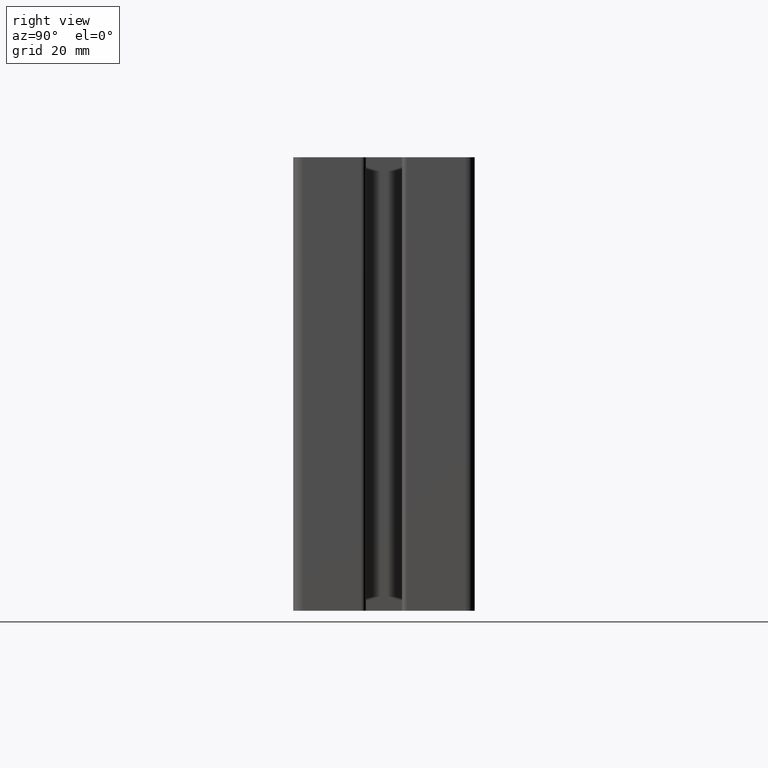
[diagram: clean part render]
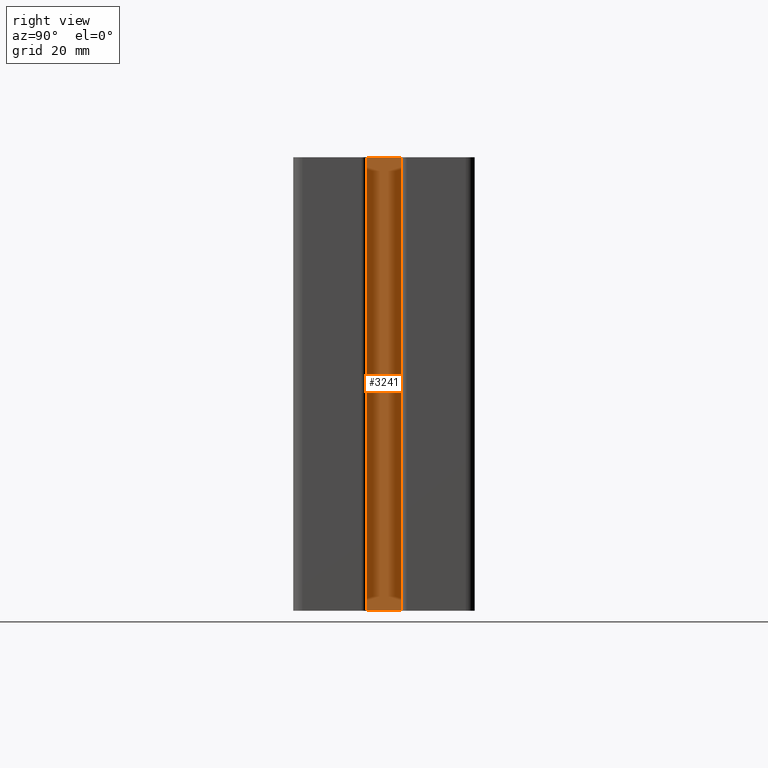
[diagram: same view with one face highlighted and labeled with its STEP entity id]
A machine part, right view. The second image highlights one B-rep face of the part: STEP entity #3241.
In plain terms, the highlighted planar face has unit normal (-1, 0, 0).
Its self-contained STEP definition (entity closure, byte-faithful):
#82=PLANE('',#3530);
#225=FACE_OUTER_BOUND('',#390,.T.);
#390=EDGE_LOOP('',(#2531,#2532,#2533,#2534));
#683=LINE('',#5322,#1003);
#684=LINE('',#5325,#1004);
#685=LINE('',#5327,#1005);
#686=LINE('',#5328,#1006);
#1003=VECTOR('',#4330,100.);
#1004=VECTOR('',#4333,7.68629150101523);
#1005=VECTOR('',#4334,7.68629150101523);
#1006=VECTOR('',#4335,100.);
#1503=VERTEX_POINT('',#5318);
#1504=VERTEX_POINT('',#5320);
#1505=VERTEX_POINT('',#5324);
#1506=VERTEX_POINT('',#5326);
#1937=EDGE_CURVE('',#1504,#1503,#683,.T.);
#1938=EDGE_CURVE('',#1503,#1505,#684,.T.);
#1939=EDGE_CURVE('',#1506,#1504,#685,.T.);
#1940=EDGE_CURVE('',#1506,#1505,#686,.T.);
#2531=ORIENTED_EDGE('',*,*,#1938,.F.);
#2532=ORIENTED_EDGE('',*,*,#1937,.F.);
#2533=ORIENTED_EDGE('',*,*,#1939,.F.);
#2534=ORIENTED_EDGE('',*,*,#1940,.T.);
#3241=ADVANCED_FACE('',(#225),#82,.F.);
#3530=AXIS2_PLACEMENT_3D('',#5323,#4331,#4332);
#4330=DIRECTION('',(0.,0.,1.));
#4331=DIRECTION('center_axis',(-1.,0.,0.));
#4332=DIRECTION('ref_axis',(0.,0.,1.));
#4333=DIRECTION('',(0.,1.,0.));
#4334=DIRECTION('',(0.,-1.,0.));
#4335=DIRECTION('',(0.,0.,1.));
#5318=CARTESIAN_POINT('',(47.5,-3.84314575050762,100.));
#5320=CARTESIAN_POINT('',(47.5,-3.84314575050762,0.));
#5322=CARTESIAN_POINT('',(47.5,-3.84314575050762,0.));
#5323=CARTESIAN_POINT('Origin',(47.5,-3.84314575050762,0.));
#5324=CARTESIAN_POINT('',(47.5,3.84314575050761,100.));
#5325=CARTESIAN_POINT('',(47.5,-1.92157287525381,100.));
#5326=CARTESIAN_POINT('',(47.5,3.84314575050761,0.));
#5327=CARTESIAN_POINT('',(47.5,-1.92157287525381,0.));
#5328=CARTESIAN_POINT('',(47.5,3.84314575050761,0.));